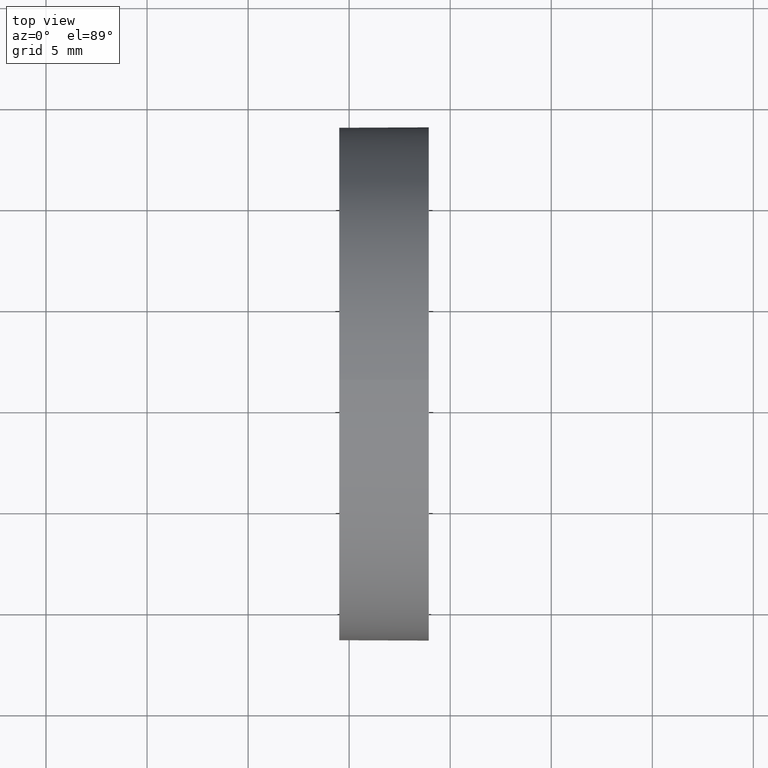
[diagram: clean part render]
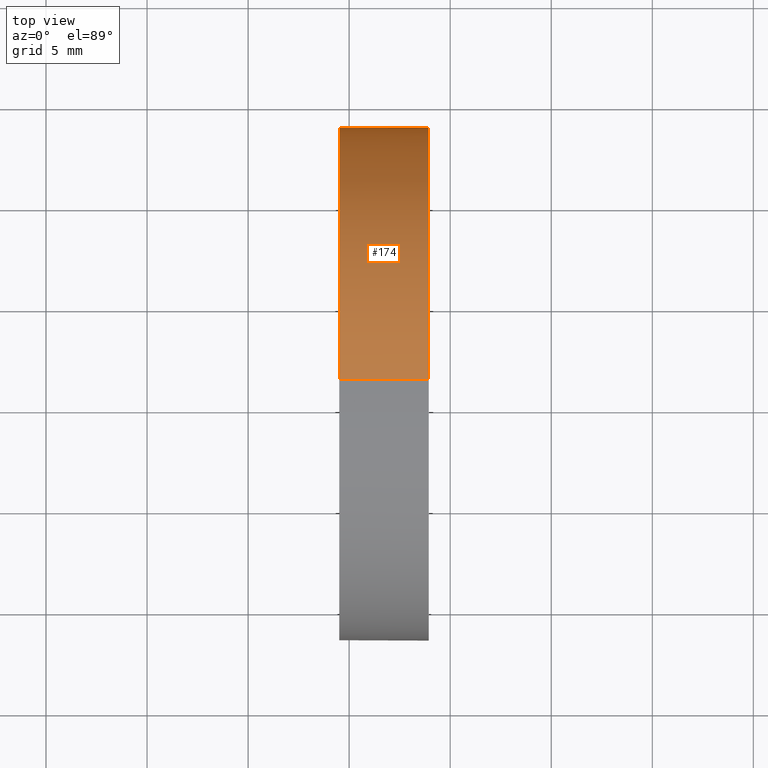
[diagram: same view with one face highlighted and labeled with its STEP entity id]
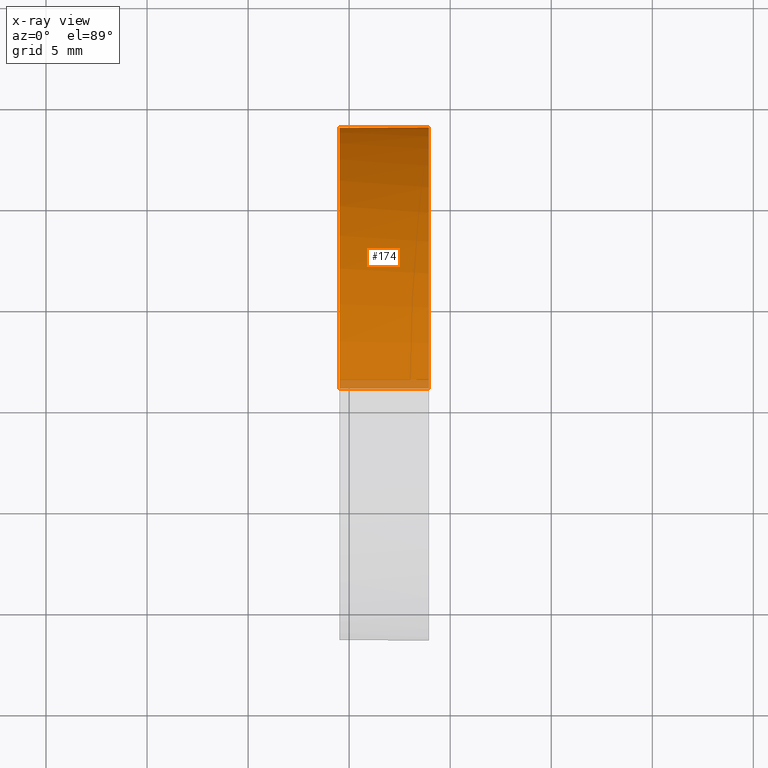
[diagram: x-ray of the same camera — body ghosted, the highlighted face saturated]
A machine part, top view. The second image highlights one B-rep face of the part: STEP entity #174.
The next image is the same camera in x-ray: the body ghosted, the highlighted face saturated — about 3% of this face is hidden behind the body in this view.
In plain terms, the highlighted cylindrical surface (partial cylindrical patch) has radius 12.7 mm, axis along (-1, -0, -0).
Its self-contained STEP definition (entity closure, byte-faithful):
#1 = ORIENTED_EDGE ( 'NONE', *, *, #82, .T. ) ;
#6 = CARTESIAN_POINT ( 'NONE',  ( 111.9552297575605700, 71.19398908659370300, -12.70000000000001000 ) ) ;
#7 = AXIS2_PLACEMENT_3D ( 'NONE', #184, #51, #123 ) ;
#8 = ORIENTED_EDGE ( 'NONE', *, *, #103, .F. ) ;
#12 = CARTESIAN_POINT ( 'NONE',  ( 111.9552297575605700, 71.19398908659370300, 12.70000000000001000 ) ) ;
#20 = AXIS2_PLACEMENT_3D ( 'NONE', #66, #178, #142 ) ;
#21 = ORIENTED_EDGE ( 'NONE', *, *, #75, .F. ) ;
#23 = CIRCLE ( 'NONE', #137, 12.70000000000001700 ) ;
#26 = ORIENTED_EDGE ( 'NONE', *, *, #117, .T. ) ;
#31 = VECTOR ( 'NONE', #73, 1000.000000000000000 ) ;
#34 = DIRECTION ( 'NONE',  ( -1.000000000000000000, -0.0000000000000000000, -0.0000000000000000000 ) ) ;
#45 = EDGE_CURVE ( 'NONE', #96, #111, #136, .T. ) ;
#48 = CARTESIAN_POINT ( 'NONE',  ( 123.9409503829447100, 71.19398908659370300, 0.0000000000000000000 ) ) ;
#51 = DIRECTION ( 'NONE',  ( -1.000000000000000000, -0.0000000000000000000, -0.0000000000000000000 ) ) ;
#60 = EDGE_LOOP ( 'NONE', ( #72, #1, #21, #8, #26 ) ) ;
#63 = DIRECTION ( 'NONE',  ( -1.000000000000000000, -0.0000000000000000000, -0.0000000000000000000 ) ) ;
#66 = CARTESIAN_POINT ( 'NONE',  ( 119.5068341785477100, 71.19398908659370300, 0.0000000000000000000 ) ) ;
#68 = CARTESIAN_POINT ( 'NONE',  ( 123.9409503829447100, 83.89398908659370600, 1.555301434917135500E-015 ) ) ;
#72 = ORIENTED_EDGE ( 'NONE', *, *, #45, .T. ) ;
#73 = DIRECTION ( 'NONE',  ( -1.000000000000000000, -0.0000000000000000000, -0.0000000000000000000 ) ) ;
#75 = EDGE_CURVE ( 'NONE', #88, #124, #157, .T. ) ;
#76 = LINE ( 'NONE', #12, #31 ) ;
#82 = EDGE_CURVE ( 'NONE', #111, #124, #94, .T. ) ;
#84 = CARTESIAN_POINT ( 'NONE',  ( 123.9409503829447100, 71.19398908659370300, 0.0000000000000000000 ) ) ;
#88 = VERTEX_POINT ( 'NONE', #141 ) ;
#94 = LINE ( 'NONE', #6, #115 ) ;
#96 = VERTEX_POINT ( 'NONE', #68 ) ;
#103 = EDGE_CURVE ( 'NONE', #144, #88, #76, .T. ) ;
#111 = VERTEX_POINT ( 'NONE', #156 ) ;
#112 = DIRECTION ( 'NONE',  ( 0.0000000000000000000, 0.0000000000000000000, 1.000000000000000000 ) ) ;
#115 = VECTOR ( 'NONE', #34, 1000.000000000000000 ) ;
#117 = EDGE_CURVE ( 'NONE', #144, #96, #23, .T. ) ;
#123 = DIRECTION ( 'NONE',  ( 0.0000000000000000000, 0.0000000000000000000, 1.000000000000000000 ) ) ;
#124 = VERTEX_POINT ( 'NONE', #127 ) ;
#127 = CARTESIAN_POINT ( 'NONE',  ( 119.5068341785477100, 71.19398908659370300, -12.70000000000000300 ) ) ;
#136 = CIRCLE ( 'NONE', #152, 12.70000000000001700 ) ;
#137 = AXIS2_PLACEMENT_3D ( 'NONE', #84, #164, #112 ) ;
#141 = CARTESIAN_POINT ( 'NONE',  ( 119.5068341785477100, 71.19398908659370300, 12.70000000000000300 ) ) ;
#142 = DIRECTION ( 'NONE',  ( 0.0000000000000000000, 0.0000000000000000000, 1.000000000000000000 ) ) ;
#144 = VERTEX_POINT ( 'NONE', #169 ) ;
#145 = CYLINDRICAL_SURFACE ( 'NONE', #7, 12.70000000000001000 ) ;
#148 = DIRECTION ( 'NONE',  ( 0.0000000000000000000, 0.0000000000000000000, 1.000000000000000000 ) ) ;
#152 = AXIS2_PLACEMENT_3D ( 'NONE', #48, #63, #148 ) ;
#156 = CARTESIAN_POINT ( 'NONE',  ( 123.9409503829447100, 71.19398908659370300, -12.70000000000001500 ) ) ;
#157 = CIRCLE ( 'NONE', #20, 12.70000000000000300 ) ;
#164 = DIRECTION ( 'NONE',  ( -1.000000000000000000, -0.0000000000000000000, -0.0000000000000000000 ) ) ;
#166 = FACE_OUTER_BOUND ( 'NONE', #60, .T. ) ;
#169 = CARTESIAN_POINT ( 'NONE',  ( 123.9409503829447100, 71.19398908659370300, 12.70000000000001500 ) ) ;
#174 = ADVANCED_FACE ( 'NONE', ( #166 ), #145, .T. ) ;
#178 = DIRECTION ( 'NONE',  ( -1.000000000000000000, -0.0000000000000000000, -0.0000000000000000000 ) ) ;
#184 = CARTESIAN_POINT ( 'NONE',  ( 111.9552297575605700, 71.19398908659370300, 0.0000000000000000000 ) ) ;